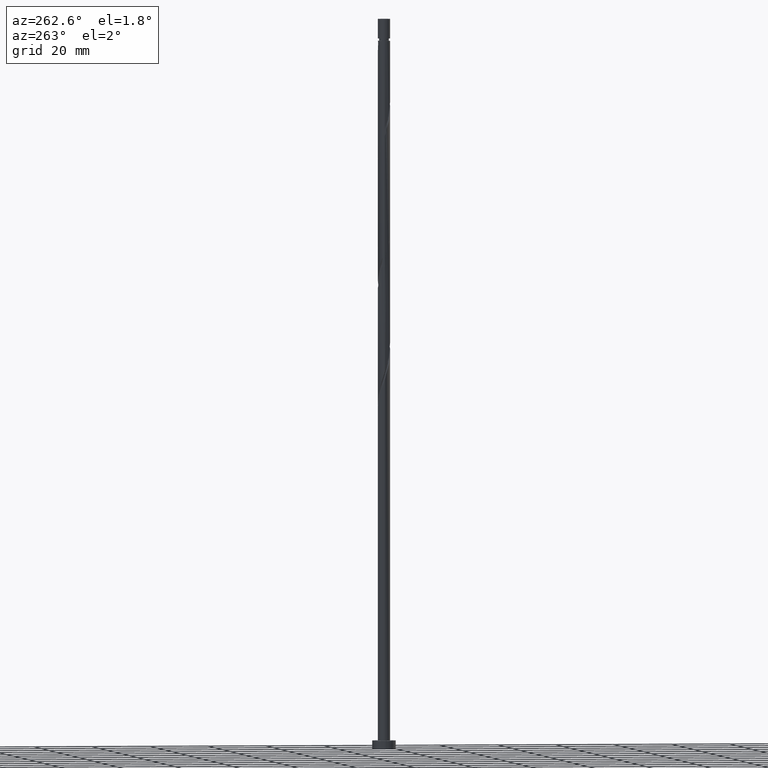
[diagram: clean part render]
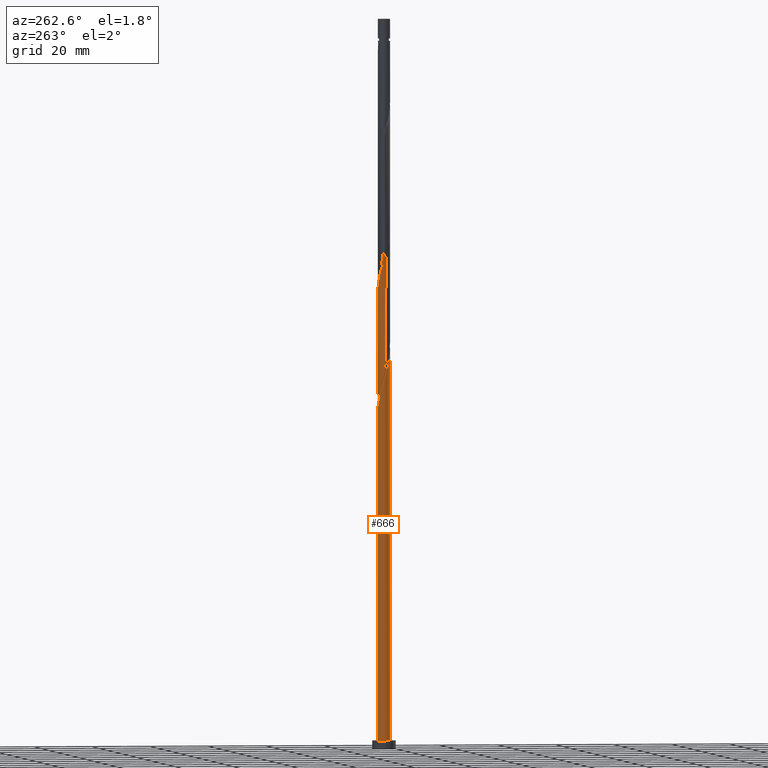
[diagram: same view with one face highlighted and labeled with its STEP entity id]
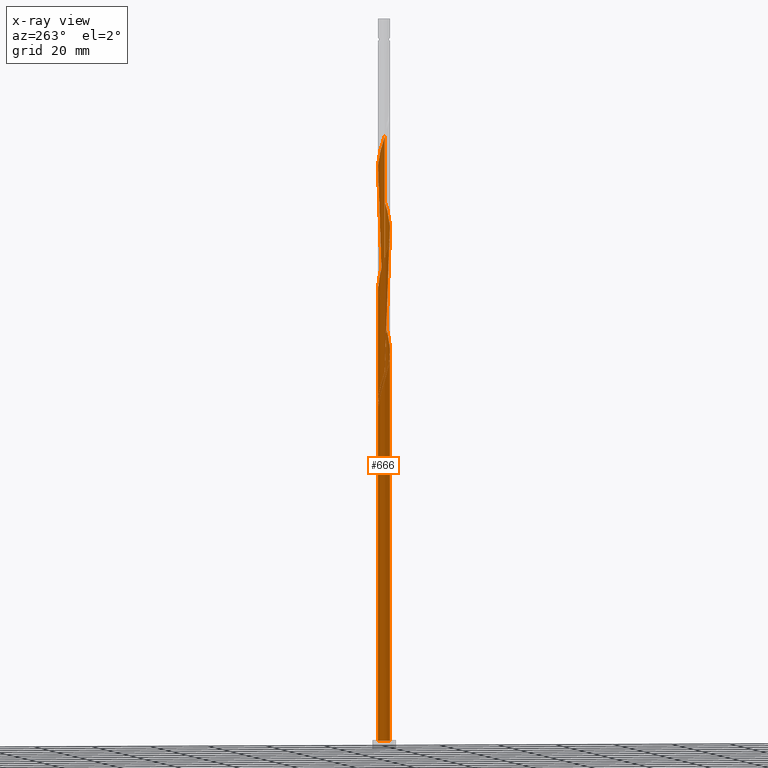
[diagram: x-ray of the same camera — body ghosted, the highlighted face saturated]
A machine part, auxiliary view. The second image highlights one B-rep face of the part: STEP entity #666.
The next image is the same camera in x-ray: the body ghosted, the highlighted face saturated — about 0% of this face is hidden behind the body in this view.
In plain terms, the highlighted cylindrical surface (bore or boss wall) has radius 2.1 mm, axis along (-0, -0, -1).
Its self-contained STEP definition (entity closure, byte-faithful):
#1 = CARTESIAN_POINT ( 'NONE',  ( 2.113617666152269425, -0.08739740014156348324, 147.1272972942664126 ) ) ;
#7 = CARTESIAN_POINT ( 'NONE',  ( 0.000000000000000000, 0.000000000000000000, 117.4798613968305574 ) ) ;
#16 = ORIENTED_EDGE ( 'NONE', *, *, #699, .F. ) ;
#18 = CARTESIAN_POINT ( 'NONE',  ( 1.456309535695672341, 1.512997863925085174, 194.4029383199074061 ) ) ;
#20 = CARTESIAN_POINT ( 'NONE',  ( -1.524110344334083322, 1.467005658651769240, 163.1529383199074061 ) ) ;
#29 = CARTESIAN_POINT ( 'NONE',  ( -2.100000000000004530, -0.08352357370720617236, 126.8327771032381435 ) ) ;
#37 = CARTESIAN_POINT ( 'NONE',  ( -1.524110344334083322, 1.467005658651769240, 204.8196049865740349 ) ) ;
#39 = VECTOR ( 'NONE', #959, 1000.000000000000000 ) ;
#51 = VERTEX_POINT ( 'NONE', #361 ) ;
#56 = EDGE_CURVE ( 'NONE', #491, #1504, #450, .T. ) ;
#65 = CARTESIAN_POINT ( 'NONE',  ( -1.776075916194129967, 1.120515211817841639, 125.4926819096509547 ) ) ;
#69 = CARTESIAN_POINT ( 'NONE',  ( -1.677505122866759013, 1.263319659767785597, 122.2875537045227361 ) ) ;
#77 = CARTESIAN_POINT ( 'NONE',  ( -2.031284211245810933, 0.5906796063569093036, 124.6913998583688965 ) ) ;
#79 = CARTESIAN_POINT ( 'NONE',  ( 0.8982630995139601060, -1.898189506885860744, 181.5824254993945601 ) ) ;
#81 = CARTESIAN_POINT ( 'NONE',  ( 0.6677811650561942258, -2.007258393884221004, 139.1144767814458874 ) ) ;
#82 = CARTESIAN_POINT ( 'NONE',  ( 0.4178947235847823016, 2.057999999999999385, 117.4798613968304437 ) ) ;
#89 = CARTESIAN_POINT ( 'NONE',  ( 1.524110344334083322, -1.467005658651769684, 142.3196049865740349 ) ) ;
#104 = CARTESIAN_POINT ( 'NONE',  ( -2.100000000000002309, 0.1706385209278030723, 126.0289054502569144 ) ) ;
#121 = CARTESIAN_POINT ( 'NONE',  ( -2.100000000000004086, 0.1706385209277949400, 209.3622387835903282 ) ) ;
#124 = CARTESIAN_POINT ( 'NONE',  ( 0.000000000000000000, 0.000000000000000000, 3.000000000000000000 ) ) ;
#130 = CARTESIAN_POINT ( 'NONE',  ( -1.830899901399435370, 1.059633660883801731, 206.4221690891380661 ) ) ;
#132 = CARTESIAN_POINT ( 'NONE',  ( -0.6677811650561947809, 2.007258393884221004, 159.9478101147791449 ) ) ;
#135 = DIRECTION ( 'NONE',  ( 1.000000000000000000, 0.000000000000000000, 0.000000000000000000 ) ) ;
#139 = CARTESIAN_POINT ( 'NONE',  ( 1.830899901399434926, -1.059633660883802397, 185.5888357558048085 ) ) ;
#143 = LINE ( 'NONE', #948, #39 ) ;
#148 = CARTESIAN_POINT ( 'NONE',  ( 1.776075916194133297, 1.120515211817842527, 192.8003742173432045 ) ) ;
#157 = CARTESIAN_POINT ( 'NONE',  ( -0.8982630995139605501, 1.898189506885860300, 202.4157588327278745 ) ) ;
#161 = CARTESIAN_POINT ( 'NONE',  ( -2.100000000000000089, 2.557465489191984118E-15, 129.2244499393889896 ) ) ;
#167 = ORIENTED_EDGE ( 'NONE', *, *, #1088, .F. ) ;
#174 = CARTESIAN_POINT ( 'NONE',  ( 0.4178947235847823016, 2.057999999999999385, 117.4798613968304437 ) ) ;
#180 = CARTESIAN_POINT ( 'NONE',  ( -2.100000000000003642, 2.392950165325814870E-16, 209.9019395209385834 ) ) ;
#197 = EDGE_CURVE ( 'NONE', #1603, #1504, #662, .T. ) ;
#199 = CARTESIAN_POINT ( 'NONE',  ( 1.128745033971726430, -1.789120619887501373, 140.7170408840099469 ) ) ;
#208 = CARTESIAN_POINT ( 'NONE',  ( -1.456309535695668789, 1.512997863925082953, 123.8901178070868525 ) ) ;
#210 = ORIENTED_EDGE ( 'NONE', *, *, #197, .F. ) ;
#217 = CARTESIAN_POINT ( 'NONE',  ( -0.08676017469362798384, 2.098207013639771912, 119.0824254993945459 ) ) ;
#219 = ORIENTED_EDGE ( 'NONE', *, *, #1492, .F. ) ;
#229 = CARTESIAN_POINT ( 'NONE',  ( -1.830899901399435370, 1.059633660883801731, 123.0888357558048085 ) ) ;
#232 = CARTESIAN_POINT ( 'NONE',  ( -0.4178947235847818020, 2.058000000000003382, 117.4798613968304437 ) ) ;
#235 = AXIS2_PLACEMENT_3D ( 'NONE', #7, #768, #374 ) ;
#251 = CARTESIAN_POINT ( 'NONE',  ( -2.072450938699039735, 0.3390385032492366224, 167.1593485763177114 ) ) ;
#260 = CARTESIAN_POINT ( 'NONE',  ( -2.100000000000000089, 2.557465489191984118E-15, 129.2244499393889896 ) ) ;
#267 = CARTESIAN_POINT ( 'NONE',  ( 2.072450938699039735, -0.3390385032492370665, 187.9926819096509405 ) ) ;
#274 = CARTESIAN_POINT ( 'NONE',  ( 1.931092056322622819, -0.8251566336203557395, 186.3901178070868525 ) ) ;
#290 = CARTESIAN_POINT ( 'NONE',  ( -0.1680082821133684623, 2.108741606115786205, 200.0119126788817141 ) ) ;
#298 = CARTESIAN_POINT ( 'NONE',  ( -0.4178947235847816910, 2.058000000000003382, 200.8131947301637865 ) ) ;
#302 = CARTESIAN_POINT ( 'NONE',  ( -2.100000000000003642, -1.719932931327929980E-15, 126.5686061876052406 ) ) ;
#319 = CARTESIAN_POINT ( 'NONE',  ( 0.1680082821133687399, -2.108741606115785761, 137.5119126788817709 ) ) ;
#328 = CARTESIAN_POINT ( 'NONE',  ( -0.08676017469362930223, -2.098207013639776353, 136.7106306275996701 ) ) ;
#330 = CARTESIAN_POINT ( 'NONE',  ( 1.830899901399434926, -1.059633660883802397, 143.9221690891381513 ) ) ;
#361 = CARTESIAN_POINT ( 'NONE',  ( -0.4178947235847818020, 2.058000000000003382, 117.4798613968304437 ) ) ;
#374 = DIRECTION ( 'NONE',  ( 0.000000000000000000, 1.000000000000000000, -5.286776307738840188E-14 ) ) ;
#377 = CARTESIAN_POINT ( 'NONE',  ( -1.931092056322622819, 0.8251566336203557395, 165.5567844737535097 ) ) ;
#393 = CARTESIAN_POINT ( 'NONE',  ( 1.677505122866759013, -1.263319659767785819, 184.7875537045227929 ) ) ;
#395 = CARTESIAN_POINT ( 'NONE',  ( 2.073115344989578723, 0.4209640252933859461, 148.7298613968304721 ) ) ;
#404 = CIRCLE ( 'NONE', #516, 2.100000000000000089 ) ;
#405 = CARTESIAN_POINT ( 'NONE',  ( 2.031284211245810489, -0.5906796063569107469, 187.1913998583689533 ) ) ;
#407 = CARTESIAN_POINT ( 'NONE',  ( -1.128745033971726652, 1.789120619887501373, 161.5503742173432897 ) ) ;
#416 = CARTESIAN_POINT ( 'NONE',  ( -1.992623220216672708, -0.6629122885068213789, 128.6978101147791449 ) ) ;
#424 = CARTESIAN_POINT ( 'NONE',  ( -0.8312171424578715939, -1.945275303474199635, 175.9734511404201669 ) ) ;
#427 = DIRECTION ( 'NONE',  ( -1.000000000000000000, 0.000000000000000000, 0.000000000000000000 ) ) ;
#434 = CARTESIAN_POINT ( 'NONE',  ( -1.272598334446845003, -1.689825855934742771, 132.7042203711894217 ) ) ;
#450 = CIRCLE ( 'NONE', #774, 2.100000000000000089 ) ;
#458 = CARTESIAN_POINT ( 'NONE',  ( -1.272598334446845003, -1.689825855934742771, 174.3708870378561073 ) ) ;
#462 = CARTESIAN_POINT ( 'NONE',  ( -2.073115344989575171, 0.4209640252933861682, 127.8965280634971293 ) ) ;
#473 = ORIENTED_EDGE ( 'NONE', *, *, #197, .T. ) ;
#479 = CARTESIAN_POINT ( 'NONE',  ( 1.677505122866759013, -1.263319659767785819, 143.1208870378560789 ) ) ;
#489 = CARTESIAN_POINT ( 'NONE',  ( -0.8312171424578699286, 1.945275303474196971, 121.4862716532407205 ) ) ;
#491 = VERTEX_POINT ( 'NONE', #1326 ) ;
#497 = CARTESIAN_POINT ( 'NONE',  ( -2.100000000000000089, 0.000000000000000000, 3.000000000000000000 ) ) ;
#513 = CARTESIAN_POINT ( 'NONE',  ( 1.272598334446845447, 1.689825855934741883, 153.5375537045227645 ) ) ;
#516 = AXIS2_PLACEMENT_3D ( 'NONE', #124, #918, #1316 ) ;
#538 = CARTESIAN_POINT ( 'NONE',  ( -0.8982630995139605501, 1.898189506885860300, 160.7490921660611889 ) ) ;
#539 = CARTESIAN_POINT ( 'NONE',  ( 1.051907738452358521, 1.817550579704470870, 154.3388357558048085 ) ) ;
#546 = CARTESIAN_POINT ( 'NONE',  ( -0.5863728869792493859, -2.016473862318982402, 135.1080665250356105 ) ) ;
#561 = CARTESIAN_POINT ( 'NONE',  ( 0.1680082821133687399, -2.108741606115785761, 179.1785793455483997 ) ) ;
#569 = CARTESIAN_POINT ( 'NONE',  ( -1.677505122866759013, 1.263319659767785597, 205.6208870378560505 ) ) ;
#586 = CARTESIAN_POINT ( 'NONE',  ( -1.912131095443766693, -0.9048605517202575887, 171.1657588327278461 ) ) ;
#610 = ORIENTED_EDGE ( 'NONE', *, *, #56, .T. ) ;
#614 = CARTESIAN_POINT ( 'NONE',  ( -1.640020736944497015, 1.336169871915425800, 124.6913998583689107 ) ) ;
#626 = CARTESIAN_POINT ( 'NONE',  ( -1.326427689152905209, 1.628063139269634751, 120.6849896019586765 ) ) ;
#635 = CARTESIAN_POINT ( 'NONE',  ( -2.100000000000003642, -1.719932931327929980E-15, 126.5686061876052406 ) ) ;
#662 = LINE ( 'NONE', #1050, #1005 ) ;
#666 = ADVANCED_FACE ( 'NONE', ( #1619 ), #968, .T. ) ;
#681 = CARTESIAN_POINT ( 'NONE',  ( -0.3415286315006273998, -2.087672421163765168, 177.5760152429843401 ) ) ;
#690 = CARTESIAN_POINT ( 'NONE',  ( -1.326427689152905209, 1.628063139269634751, 204.0183229352919909 ) ) ;
#699 = EDGE_CURVE ( 'NONE', #1218, #1206, #143, .T. ) ;
#701 = CARTESIAN_POINT ( 'NONE',  ( -2.093366505570923852, -0.1667833125759110302, 127.0952460122150569 ) ) ;
#708 =( BOUNDED_CURVE ( )  B_SPLINE_CURVE ( 2, ( #232, #889, #1412, #1544, #626, #885, #69, #229, #1683, #77, #1418, #104, #635 ),
 .UNSPECIFIED., .F., .T. ) 
 B_SPLINE_CURVE_WITH_KNOTS ( ( 3, 2, 2, 2, 2, 2, 3 ),
 ( 0.000000000000000000, 0.009615384615384581224, 0.01923076923076927347, 0.02884615384615385469, 0.03846153846153843592, 0.04807692307692312816, 0.05452716259738302207 ),
 .UNSPECIFIED. ) 
 CURVE ( )  GEOMETRIC_REPRESENTATION_ITEM ( )  RATIONAL_B_SPLINE_CURVE ( ( 0.9090909090909490287, 0.9024626128164523475, 0.9090909090909490287, 0.9024626128164523475, 0.9090909090909490287, 0.9024626128164523475, 0.9090909090909490287, 0.9024626128164523475, 0.9090909090909490287, 0.9024626128164523475, 0.9090909090909490287, 0.9046444828383091163, 0.9061636035683036106 ) ) 
 REPRESENTATION_ITEM ( '' )  );
#734 = CARTESIAN_POINT ( 'NONE',  ( 0.4178947235847819131, -2.058000000000003382, 179.9798613968304437 ) ) ;
#743 = CARTESIAN_POINT ( 'NONE',  ( -1.051907738452355634, 1.817550579704468650, 122.2875537045227503 ) ) ;
#762 = CARTESIAN_POINT ( 'NONE',  ( 0.5863728869792507181, 2.016473862318982402, 155.9413998583689249 ) ) ;
#768 = DIRECTION ( 'NONE',  ( 0.000000000000000000, -4.956352788505165832E-14, -1.000000000000000000 ) ) ;
#774 = AXIS2_PLACEMENT_3D ( 'NONE', #1558, #1714, #135 ) ;
#779 = CARTESIAN_POINT ( 'NONE',  ( -2.100000000000000089, 0.08352357370721519292, 128.9602790237560441 ) ) ;
#788 = CARTESIAN_POINT ( 'NONE',  ( 0.08676017469363052348, 2.098207013639775909, 199.2106306275996985 ) ) ;
#790 = CARTESIAN_POINT ( 'NONE',  ( -2.100000000000003642, -1.719932931327929980E-15, 126.5686061876052406 ) ) ;
#796 = CARTESIAN_POINT ( 'NONE',  ( 1.912131095443767137, 0.9048605517202568116, 191.9990921660611605 ) ) ;
#804 = VERTEX_POINT ( 'NONE', #174 ) ;
#805 = CARTESIAN_POINT ( 'NONE',  ( 2.093366505570923852, 0.1667833125759103363, 189.5952460122150569 ) ) ;
#807 = CARTESIAN_POINT ( 'NONE',  ( -0.4178947235847816910, 2.058000000000003382, 159.1465280634970725 ) ) ;
#825 = CARTESIAN_POINT ( 'NONE',  ( 0.8312171424578718160, 1.945275303474199635, 196.8067844737534244 ) ) ;
#831 = EDGE_CURVE ( 'NONE', #51, #804, #1529, .T. ) ;
#852 = CARTESIAN_POINT ( 'NONE',  ( -1.051907738452358299, -1.817550579704471092, 175.1721690891381229 ) ) ;
#872 = CARTESIAN_POINT ( 'NONE',  ( -0.3415286315006256235, 2.087672421163763392, 119.8837075506766183 ) ) ;
#877 = CARTESIAN_POINT ( 'NONE',  ( 1.326427689152904987, -1.628063139269634751, 183.1849896019586481 ) ) ;
#885 = CARTESIAN_POINT ( 'NONE',  ( -1.524110344334083322, 1.467005658651769240, 121.4862716532407063 ) ) ;
#888 = CARTESIAN_POINT ( 'NONE',  ( 0.08676017469363052348, 2.098207013639775909, 157.5439639609329845 ) ) ;
#889 = CARTESIAN_POINT ( 'NONE',  ( -0.6677811650561947809, 2.007258393884221004, 118.2811434481125161 ) ) ;
#890 = CARTESIAN_POINT ( 'NONE',  ( -1.272598334446841450, 1.689825855934741217, 123.0888357558048227 ) ) ;
#898 = AXIS2_PLACEMENT_3D ( 'NONE', #1352, #1609, #427 ) ;
#900 = CARTESIAN_POINT ( 'NONE',  ( 1.640020736944500124, 1.336169871915426244, 151.9349896019586765 ) ) ;
#908 = CARTESIAN_POINT ( 'NONE',  ( -2.031284211245810933, 0.5906796063569093036, 166.3580665250355821 ) ) ;
#918 = DIRECTION ( 'NONE',  ( 0.000000000000000000, 0.000000000000000000, 1.000000000000000000 ) ) ;
#937 = CARTESIAN_POINT ( 'NONE',  ( -2.073115344989578723, -0.4209640252933863347, 127.8965280634971009 ) ) ;
#945 = CARTESIAN_POINT ( 'NONE',  ( -0.3415286315006273998, -2.087672421163765168, 135.9093485763176545 ) ) ;
#948 = CARTESIAN_POINT ( 'NONE',  ( -2.100000000000000089, 0.000000000000000000, 250.0000000000000000 ) ) ;
#953 = CARTESIAN_POINT ( 'NONE',  ( -0.5863728869792493859, -2.016473862318982402, 176.7747331917022393 ) ) ;
#955 = CARTESIAN_POINT ( 'NONE',  ( -1.776075916194133297, -1.120515211817842305, 130.3003742173432897 ) ) ;
#959 = DIRECTION ( 'NONE',  ( -0.000000000000000000, -0.000000000000000000, -1.000000000000000000 ) ) ;
#962 = CARTESIAN_POINT ( 'NONE',  ( 1.992623220216673152, 0.6629122885068204907, 191.1978101147791449 ) ) ;
#968 = CYLINDRICAL_SURFACE ( 'NONE', #898, 2.100000000000000089 ) ;
#1005 = VECTOR ( 'NONE', #1160, 1000.000000000000000 ) ;
#1016 = CARTESIAN_POINT ( 'NONE',  ( 2.031284211245810489, -0.5906796063569107469, 145.5247331917022677 ) ) ;
#1030 = CARTESIAN_POINT ( 'NONE',  ( 1.992623220216673152, 0.6629122885068204907, 149.5311434481124877 ) ) ;
#1036 = EDGE_CURVE ( 'NONE', #51, #1603, #708, .T. ) ;
#1050 = CARTESIAN_POINT ( 'NONE',  ( -2.100000000000000089, 0.000000000000000000, 250.0000000000000000 ) ) ;
#1077 = CARTESIAN_POINT ( 'NONE',  ( 1.051907738452358521, 1.817550579704470870, 196.0055024224714657 ) ) ;
#1079 = CARTESIAN_POINT ( 'NONE',  ( -1.677505122866759013, 1.263319659767785597, 163.9542203711893933 ) ) ;
#1080 = CARTESIAN_POINT ( 'NONE',  ( -1.640020736944499458, -1.336169871915427354, 131.1016562686253337 ) ) ;
#1088 = EDGE_CURVE ( 'NONE', #1603, #1218, #1246, .T. ) ;
#1096 = ORIENTED_EDGE ( 'NONE', *, *, #1036, .F. ) ;
#1106 = CARTESIAN_POINT ( 'NONE',  ( -1.992623220216672708, -0.6629122885068213789, 170.3644767814458021 ) ) ;
#1112 = CARTESIAN_POINT ( 'NONE',  ( -1.776075916194133297, -1.120515211817842305, 171.9670408840099753 ) ) ;
#1138 = CARTESIAN_POINT ( 'NONE',  ( 1.931092056322622819, -0.8251566336203557395, 144.7234511404201385 ) ) ;
#1157 = CARTESIAN_POINT ( 'NONE',  ( -2.093366505570919855, 0.1667833125759118351, 128.6978101147791733 ) ) ;
#1160 = DIRECTION ( 'NONE',  ( -0.000000000000000000, -0.000000000000000000, -1.000000000000000000 ) ) ;
#1170 = CARTESIAN_POINT ( 'NONE',  ( -2.072450938699039735, 0.3390385032492366224, 208.8260152429843401 ) ) ;
#1195 = CARTESIAN_POINT ( 'NONE',  ( -0.6677811650561947809, 2.007258393884221004, 201.6144767814458021 ) ) ;
#1197 = CARTESIAN_POINT ( 'NONE',  ( -0.8312171424578715939, -1.945275303474199635, 134.3067844737535381 ) ) ;
#1206 = VERTEX_POINT ( 'NONE', #161 ) ;
#1208 = CARTESIAN_POINT ( 'NONE',  ( 1.640020736944500124, 1.336169871915426244, 193.6016562686253053 ) ) ;
#1210 = CARTESIAN_POINT ( 'NONE',  ( -1.326427689152905209, 1.628063139269634751, 162.3516562686253337 ) ) ;
#1218 = VERTEX_POINT ( 'NONE', #180 ) ;
#1219 = CARTESIAN_POINT ( 'NONE',  ( -1.128745033971726652, 1.789120619887501373, 203.2170408840099469 ) ) ;
#1221 = CARTESIAN_POINT ( 'NONE',  ( -0.08676017469362930223, -2.098207013639776353, 178.3772972942663273 ) ) ;
#1238 = CARTESIAN_POINT ( 'NONE',  ( -2.113617666152269425, 0.08739740014156356651, 167.9606306275996985 ) ) ;
#1246 =( BOUNDED_CURVE ( )  B_SPLINE_CURVE ( 2, ( #302, #29, #701, #937, #416, #1489, #955, #1080, #1470, #434, #1453, #1197, #546, #945, #328, #319, #1257, #81, #1644, #199, #1511, #89, #479, #330, #1138, #1016, #1676, #1, #1694, #395, #1030, #1445, #1554, #900, #1421, #513, #539, #1704, #762, #1543, #888, #1461, #807, #132, #538, #407, #1210, #20, #1079, #1308, #377, #908, #251, #1238, #1507, #1624, #1106, #586, #1112, #1613, #1640, #458, #852, #424, #953, #681, #1221, #561, #734, #1534, #79, #1667, #877, #1282, #393, #139, #274, #405, #267, #1467, #805, #1337, #962, #796, #148, #1208, #18, #1477, #1077, #825, #1329, #1604, #788, #290, #298, #1195, #157, #1219, #690, #37, #569, #130, #1569, #1709, #1170, #121, #1550 ),
 .UNSPECIFIED., .F., .T. ) 
 B_SPLINE_CURVE_WITH_KNOTS ( ( 3, 2, 2, 2, 2, 2, 2, 2, 2, 2, 2, 2, 2, 2, 2, 2, 2, 2, 2, 2, 2, 2, 2, 2, 2, 2, 2, 2, 2, 2, 2, 2, 2, 2, 2, 2, 2, 2, 2, 2, 2, 2, 2, 2, 2, 2, 2, 2, 2, 2, 2, 2, 2, 3 ),
 ( 0.05452716259738301513, 0.05769230769230770939, 0.06730769230769229061, 0.07692307692307687184, 0.08653846153846156408, 0.09615384615384614531, 0.1057692307692307265, 0.1153846153846154188, 0.1250000000000000000, 0.1346153846153845812, 0.1442307692307692735, 0.1538461538461538547, 0.1634615384615384359, 0.1730769230769231282, 0.1826923076923077094, 0.1923076923076922906, 0.2019230769230768718, 0.2115384615384615641, 0.2211538461538461453, 0.2307692307692307265, 0.2403846153846154188, 0.2500000000000000000, 0.2596153846153845812, 0.2692307692307692735, 0.2788461538461538547, 0.2884615384615384359, 0.2980769230769231282, 0.3076923076923077094, 0.3173076923076922906, 0.3269230769230768718, 0.3365384615384615641, 0.3461538461538461453, 0.3557692307692307265, 0.3653846153846154188, 0.3750000000000000000, 0.3846153846153845812, 0.3942307692307692735, 0.4038461538461538547, 0.4134615384615384359, 0.4230769230769231282, 0.4326923076923077094, 0.4423076923076922906, 0.4519230769230768718, 0.4615384615384615641, 0.4711538461538461453, 0.4807692307692307265, 0.4903846153846154188, 0.5000000000000000000, 0.5096153846153845812, 0.5192307692307691624, 0.5288461538461538547, 0.5384615384615384359, 0.5480769230769231282, 0.5545271625973833274 ),
 .UNSPECIFIED. ) 
 CURVE ( )  GEOMETRIC_REPRESENTATION_ITEM ( )  RATIONAL_B_SPLINE_CURVE ( ( 0.9061636035683036106, 0.9069090390690921488, 0.9090909090909490287, 0.9024626128164523475, 0.9090909090909490287, 0.9024626128164523475, 0.9090909090909490287, 0.9024626128164523475, 0.9090909090909490287, 0.9024626128164523475, 0.9090909090909490287, 0.9024626128164523475, 0.9090909090909490287, 0.9024626128164523475, 0.9090909090909490287, 0.9024626128164523475, 0.9090909090909490287, 0.9024626128164523475, 0.9090909090909490287, 0.9024626128164523475, 0.9090909090909490287, 0.9024626128164523475, 0.9090909090909490287, 0.9024626128164523475, 0.9090909090909490287, 0.9024626128164523475, 0.9090909090909490287, 0.9024626128164523475, 0.9090909090909490287, 0.9024626128164523475, 0.9090909090909490287, 0.9024626128164523475, 0.9090909090909490287, 0.9024626128164523475, 0.9090909090909490287, 0.9024626128164523475, 0.9090909090909490287, 0.9024626128164523475, 0.9090909090909490287, 0.9024626128164523475, 0.9090909090909490287, 0.9024626128164523475, 0.9090909090909490287, 0.9024626128164523475, 0.9090909090909490287, 0.9024626128164523475, 0.9090909090909490287, 0.9024626128164523475, 0.9090909090909490287, 0.9024626128164523475, 0.9090909090909490287, 0.9024626128164523475, 0.9090909090909490287, 0.9024626128164523475, 0.9090909090909490287, 0.9024626128164523475, 0.9090909090909490287, 0.9024626128164523475, 0.9090909090909490287, 0.9024626128164523475, 0.9090909090909490287, 0.9024626128164523475, 0.9090909090909490287, 0.9024626128164523475, 0.9090909090909490287, 0.9024626128164523475, 0.9090909090909490287, 0.9024626128164523475, 0.9090909090909490287, 0.9024626128164523475, 0.9090909090909490287, 0.9024626128164523475, 0.9090909090909490287, 0.9024626128164523475, 0.9090909090909490287, 0.9024626128164523475, 0.9090909090909490287, 0.9024626128164523475, 0.9090909090909490287, 0.9024626128164523475, 0.9090909090909490287, 0.9024626128164523475, 0.9090909090909490287, 0.9024626128164523475, 0.9090909090909490287, 0.9024626128164523475, 0.9090909090909490287, 0.9024626128164523475, 0.9090909090909490287, 0.9024626128164523475, 0.9090909090909490287, 0.9024626128164523475, 0.9090909090909490287, 0.9024626128164523475, 0.9090909090909490287, 0.9024626128164523475, 0.9090909090909490287, 0.9024626128164523475, 0.9090909090909490287, 0.9024626128164523475, 0.9090909090909490287, 0.9024626128164523475, 0.9090909090909490287, 0.9024626128164523475, 0.9090909090909490287, 0.9046444828383088943, 0.9061636035683036106 ) ) 
 REPRESENTATION_ITEM ( '' )  );
#1257 = CARTESIAN_POINT ( 'NONE',  ( 0.4178947235847819131, -2.058000000000003382, 138.3131947301637865 ) ) ;
#1259 = CARTESIAN_POINT ( 'NONE',  ( -1.992623220216668933, 0.6629122885068214899, 127.0952460122150569 ) ) ;
#1261 = EDGE_LOOP ( 'NONE', ( #16, #167, #473, #1664, #610, #210, #1096, #1514, #219 ) ) ;
#1282 = CARTESIAN_POINT ( 'NONE',  ( 1.524110344334083322, -1.467005658651769684, 183.9862716532407489 ) ) ;
#1308 = CARTESIAN_POINT ( 'NONE',  ( -1.830899901399435370, 1.059633660883801731, 164.7555024224714657 ) ) ;
#1316 = DIRECTION ( 'NONE',  ( 1.000000000000000000, 0.000000000000000000, 0.000000000000000000 ) ) ;
#1326 = CARTESIAN_POINT ( 'NONE',  ( 2.100000000000000089, 0.000000000000000000, 3.000000000000000000 ) ) ;
#1329 = CARTESIAN_POINT ( 'NONE',  ( 0.5863728869792507181, 2.016473862318982402, 197.6080665250355821 ) ) ;
#1337 = CARTESIAN_POINT ( 'NONE',  ( 2.073115344989578723, 0.4209640252933859461, 190.3965280634970725 ) ) ;
#1352 = CARTESIAN_POINT ( 'NONE',  ( 0.000000000000000000, 0.000000000000000000, 250.0000000000000000 ) ) ;
#1398 = CARTESIAN_POINT ( 'NONE',  ( -1.912131095443763806, 0.9048605517202564785, 126.2939639609330129 ) ) ;
#1404 = CARTESIAN_POINT ( 'NONE',  ( 0.1680082821133697668, 2.108741606115783096, 118.2811434481125303 ) ) ;
#1412 = CARTESIAN_POINT ( 'NONE',  ( -0.8982630995139605501, 1.898189506885860300, 119.0824254993945601 ) ) ;
#1418 = CARTESIAN_POINT ( 'NONE',  ( -2.072450938699039735, 0.3390385032492366224, 125.4926819096509831 ) ) ;
#1421 = CARTESIAN_POINT ( 'NONE',  ( 1.456309535695672341, 1.512997863925085174, 152.7362716532407205 ) ) ;
#1445 = CARTESIAN_POINT ( 'NONE',  ( 1.912131095443767137, 0.9048605517202568116, 150.3324254993945601 ) ) ;
#1453 = CARTESIAN_POINT ( 'NONE',  ( -1.051907738452358299, -1.817550579704471092, 133.5055024224714941 ) ) ;
#1459 = EDGE_CURVE ( 'NONE', #1504, #491, #404, .T. ) ;
#1461 = CARTESIAN_POINT ( 'NONE',  ( -0.1680082821133684623, 2.108741606115786205, 158.3452460122150285 ) ) ;
#1467 = CARTESIAN_POINT ( 'NONE',  ( 2.113617666152269425, -0.08739740014156348324, 188.7939639609330413 ) ) ;
#1470 = CARTESIAN_POINT ( 'NONE',  ( -1.456309535695672119, -1.512997863925085396, 131.9029383199073493 ) ) ;
#1477 = CARTESIAN_POINT ( 'NONE',  ( 1.272598334446845447, 1.689825855934741883, 195.2042203711893649 ) ) ;
#1481 =( BOUNDED_CURVE ( )  B_SPLINE_CURVE ( 2, ( #260, #779, #1157, #462, #1259, #1398, #65, #614, #208, #890, #743, #489, #1669, #872, #217, #1404, #82 ),
 .UNSPECIFIED., .F., .T. ) 
 B_SPLINE_CURVE_WITH_KNOTS ( ( 3, 2, 2, 2, 2, 2, 2, 2, 3 ),
 ( 0.9295271625973833274, 0.9326923076923077094, 0.9423076923076922906, 0.9519230769230768718, 0.9615384615384615641, 0.9711538461538461453, 0.9807692307692307265, 0.9903846153846154188, 1.000000000000000000 ),
 .UNSPECIFIED. ) 
 CURVE ( )  GEOMETRIC_REPRESENTATION_ITEM ( )  RATIONAL_B_SPLINE_CURVE ( ( 0.9061636035682970602, 0.9069090390690857095, 0.9090909090909423673, 0.9024626128164456862, 0.9090909090909423673, 0.9024626128164456862, 0.9090909090909423673, 0.9024626128164456862, 0.9090909090909423673, 0.9024626128164456862, 0.9090909090909423673, 0.9024626128164456862, 0.9090909090909423673, 0.9024626128164456862, 0.9090909090909423673, 0.9024626128164456862, 0.9090909090909423673 ) ) 
 REPRESENTATION_ITEM ( '' )  );
#1489 = CARTESIAN_POINT ( 'NONE',  ( -1.912131095443766693, -0.9048605517202575887, 129.4990921660611889 ) ) ;
#1492 = EDGE_CURVE ( 'NONE', #1206, #804, #1481, .T. ) ;
#1504 = VERTEX_POINT ( 'NONE', #497 ) ;
#1507 = CARTESIAN_POINT ( 'NONE',  ( -2.093366505570923852, -0.1667833125759110302, 168.7619126788817141 ) ) ;
#1511 = CARTESIAN_POINT ( 'NONE',  ( 1.326427689152904987, -1.628063139269634751, 141.5183229352920193 ) ) ;
#1514 = ORIENTED_EDGE ( 'NONE', *, *, #831, .T. ) ;
#1529 = CIRCLE ( 'NONE', #235, 2.100000000000000089 ) ;
#1534 = CARTESIAN_POINT ( 'NONE',  ( 0.6677811650561942258, -2.007258393884221004, 180.7811434481125161 ) ) ;
#1543 = CARTESIAN_POINT ( 'NONE',  ( 0.3415286315006276219, 2.087672421163765168, 156.7426819096509689 ) ) ;
#1544 = CARTESIAN_POINT ( 'NONE',  ( -1.128745033971726652, 1.789120619887501373, 119.8837075506766183 ) ) ;
#1550 = CARTESIAN_POINT ( 'NONE',  ( -2.100000000000003642, 2.392950165325814870E-16, 209.9019395209385834 ) ) ;
#1554 = CARTESIAN_POINT ( 'NONE',  ( 1.776075916194133297, 1.120515211817842527, 151.1337075506766325 ) ) ;
#1558 = CARTESIAN_POINT ( 'NONE',  ( 0.000000000000000000, 0.000000000000000000, 3.000000000000000000 ) ) ;
#1569 = CARTESIAN_POINT ( 'NONE',  ( -1.931092056322622819, 0.8251566336203557395, 207.2234511404201669 ) ) ;
#1603 = VERTEX_POINT ( 'NONE', #790 ) ;
#1604 = CARTESIAN_POINT ( 'NONE',  ( 0.3415286315006276219, 2.087672421163765168, 198.4093485763176261 ) ) ;
#1609 = DIRECTION ( 'NONE',  ( -0.000000000000000000, -0.000000000000000000, -1.000000000000000000 ) ) ;
#1613 = CARTESIAN_POINT ( 'NONE',  ( -1.640020736944499458, -1.336169871915427354, 172.7683229352919625 ) ) ;
#1619 = FACE_OUTER_BOUND ( 'NONE', #1261, .T. ) ;
#1624 = CARTESIAN_POINT ( 'NONE',  ( -2.073115344989578723, -0.4209640252933863347, 169.5631947301637865 ) ) ;
#1640 = CARTESIAN_POINT ( 'NONE',  ( -1.456309535695672119, -1.512997863925085396, 173.5696049865740065 ) ) ;
#1644 = CARTESIAN_POINT ( 'NONE',  ( 0.8982630995139601060, -1.898189506885860744, 139.9157588327278461 ) ) ;
#1664 = ORIENTED_EDGE ( 'NONE', *, *, #1459, .T. ) ;
#1667 = CARTESIAN_POINT ( 'NONE',  ( 1.128745033971726430, -1.789120619887501373, 182.3837075506766041 ) ) ;
#1669 = CARTESIAN_POINT ( 'NONE',  ( -0.5863728869792478315, 2.016473862318979737, 120.6849896019586623 ) ) ;
#1676 = CARTESIAN_POINT ( 'NONE',  ( 2.072450938699039735, -0.3390385032492370665, 146.3260152429843401 ) ) ;
#1683 = CARTESIAN_POINT ( 'NONE',  ( -1.931092056322622819, 0.8251566336203557395, 123.8901178070868667 ) ) ;
#1694 = CARTESIAN_POINT ( 'NONE',  ( 2.093366505570923852, 0.1667833125759103363, 147.9285793455483997 ) ) ;
#1704 = CARTESIAN_POINT ( 'NONE',  ( 0.8312171424578718160, 1.945275303474199635, 155.1401178070868525 ) ) ;
#1709 = CARTESIAN_POINT ( 'NONE',  ( -2.031284211245810933, 0.5906796063569093036, 208.0247331917022677 ) ) ;
#1714 = DIRECTION ( 'NONE',  ( 0.000000000000000000, 0.000000000000000000, 1.000000000000000000 ) ) ;